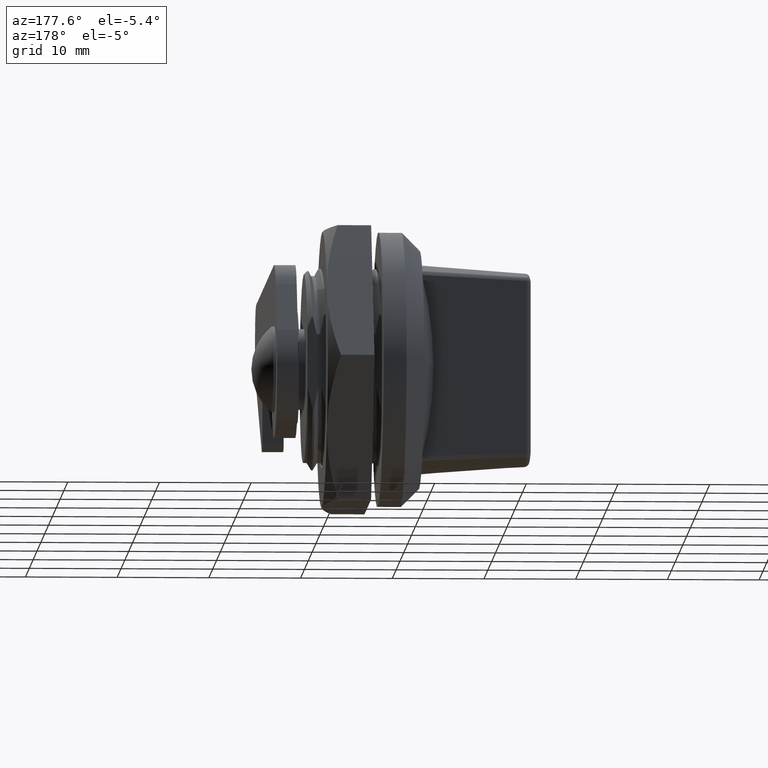
[diagram: clean part render]
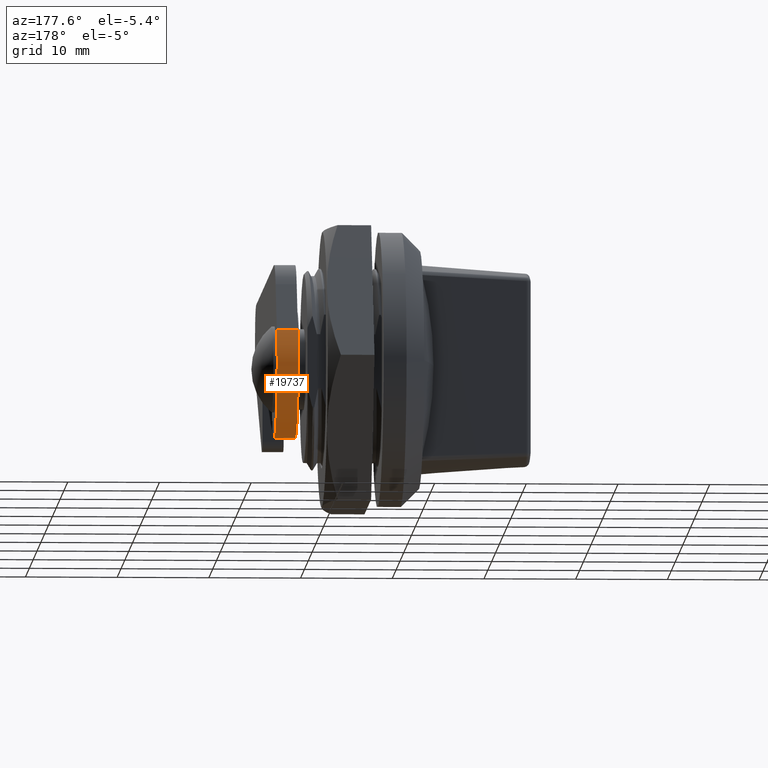
[diagram: same view with one face highlighted and labeled with its STEP entity id]
A machine part, auxiliary view. The second image highlights one B-rep face of the part: STEP entity #19737.
In plain terms, the highlighted cylindrical surface (partial cylindrical patch) has radius 7.5 mm, axis along (1, 0, 0).
Its self-contained STEP definition (entity closure, byte-faithful):
#3729 = EDGE_CURVE ( 'NONE', #12771, #14831, #15351, .T. ) ;
#4320 = CARTESIAN_POINT ( 'NONE',  ( -984.1999999999999300, 6.495190528383280300, 3.750000000000000000 ) ) ;
#6083 = CARTESIAN_POINT ( 'NONE',  ( 13.50000000000839900, 6.495190528383280300, 3.750000000000000000 ) ) ;
#6533 = DIRECTION ( 'NONE',  ( 1.000000000000000000, -0.0000000000000000000, -0.0000000000000000000 ) ) ;
#9153 = CARTESIAN_POINT ( 'NONE',  ( 15.80000000000835300, -6.245004513516739700E-017, 0.0000000000000000000 ) ) ;
#9784 = CARTESIAN_POINT ( 'NONE',  ( -984.1999999999999300, -6.245004513516739700E-017, 0.0000000000000000000 ) ) ;
#10245 = DIRECTION ( 'NONE',  ( 1.000000000000000000, 0.0000000000000000000, 0.0000000000000000000 ) ) ;
#10726 = CIRCLE ( 'NONE', #18904, 7.500000000000000000 ) ;
#11326 = DIRECTION ( 'NONE',  ( 0.0000000000000000000, 0.0000000000000000000, 1.000000000000000000 ) ) ;
#12771 = VERTEX_POINT ( 'NONE', #6083 ) ;
#14644 = VECTOR ( 'NONE', #23796, 1000.000000000000000 ) ;
#14831 = VERTEX_POINT ( 'NONE', #27339 ) ;
#15351 = LINE ( 'NONE', #4320, #14644 ) ;
#15534 = VERTEX_POINT ( 'NONE', #21269 ) ;
#16282 = CARTESIAN_POINT ( 'NONE',  ( 13.50000000000839900, -6.245004513516739700E-017, -7.500000000000000000 ) ) ;
#16314 = EDGE_LOOP ( 'NONE', ( #23549, #25625, #21808, #16942 ) ) ;
#16411 = EDGE_CURVE ( 'NONE', #25866, #12771, #10726, .T. ) ;
#16942 = ORIENTED_EDGE ( 'NONE', *, *, #19140, .F. ) ;
#17049 = VECTOR ( 'NONE', #10245, 1000.000000000000000 ) ;
#18074 = CIRCLE ( 'NONE', #26016, 7.500000000000000000 ) ;
#18854 = CARTESIAN_POINT ( 'NONE',  ( -984.1999999999999300, -6.245004513516739700E-017, -7.500000000000000000 ) ) ;
#18904 = AXIS2_PLACEMENT_3D ( 'NONE', #19491, #6533, #21663 ) ;
#19140 = EDGE_CURVE ( 'NONE', #15534, #14831, #18074, .T. ) ;
#19491 = CARTESIAN_POINT ( 'NONE',  ( 13.50000000000839900, -6.245004513516739700E-017, 0.0000000000000000000 ) ) ;
#19737 = ADVANCED_FACE ( 'NONE', ( #26213 ), #25498, .T. ) ;
#20141 = EDGE_CURVE ( 'NONE', #25866, #15534, #22774, .T. ) ;
#20559 = DIRECTION ( 'NONE',  ( 0.0000000000000000000, 0.0000000000000000000, -1.000000000000000000 ) ) ;
#21269 = CARTESIAN_POINT ( 'NONE',  ( 15.80000000000835300, -6.245004513516739700E-017, -7.500000000000000000 ) ) ;
#21663 = DIRECTION ( 'NONE',  ( 0.0000000000000000000, 0.0000000000000000000, 1.000000000000000000 ) ) ;
#21808 = ORIENTED_EDGE ( 'NONE', *, *, #3729, .T. ) ;
#22774 = LINE ( 'NONE', #18854, #17049 ) ;
#23549 = ORIENTED_EDGE ( 'NONE', *, *, #20141, .F. ) ;
#23796 = DIRECTION ( 'NONE',  ( 1.000000000000000000, 0.0000000000000000000, 0.0000000000000000000 ) ) ;
#24280 = DIRECTION ( 'NONE',  ( 1.000000000000000000, -0.0000000000000000000, -0.0000000000000000000 ) ) ;
#24913 = DIRECTION ( 'NONE',  ( 1.000000000000000000, 0.0000000000000000000, 0.0000000000000000000 ) ) ;
#25440 = AXIS2_PLACEMENT_3D ( 'NONE', #9784, #24913, #20559 ) ;
#25498 = CYLINDRICAL_SURFACE ( 'NONE', #25440, 7.500000000000000000 ) ;
#25625 = ORIENTED_EDGE ( 'NONE', *, *, #16411, .T. ) ;
#25866 = VERTEX_POINT ( 'NONE', #16282 ) ;
#26016 = AXIS2_PLACEMENT_3D ( 'NONE', #9153, #24280, #11326 ) ;
#26213 = FACE_OUTER_BOUND ( 'NONE', #16314, .T. ) ;
#27339 = CARTESIAN_POINT ( 'NONE',  ( 15.80000000000835300, 6.495190528383280300, 3.750000000000000000 ) ) ;